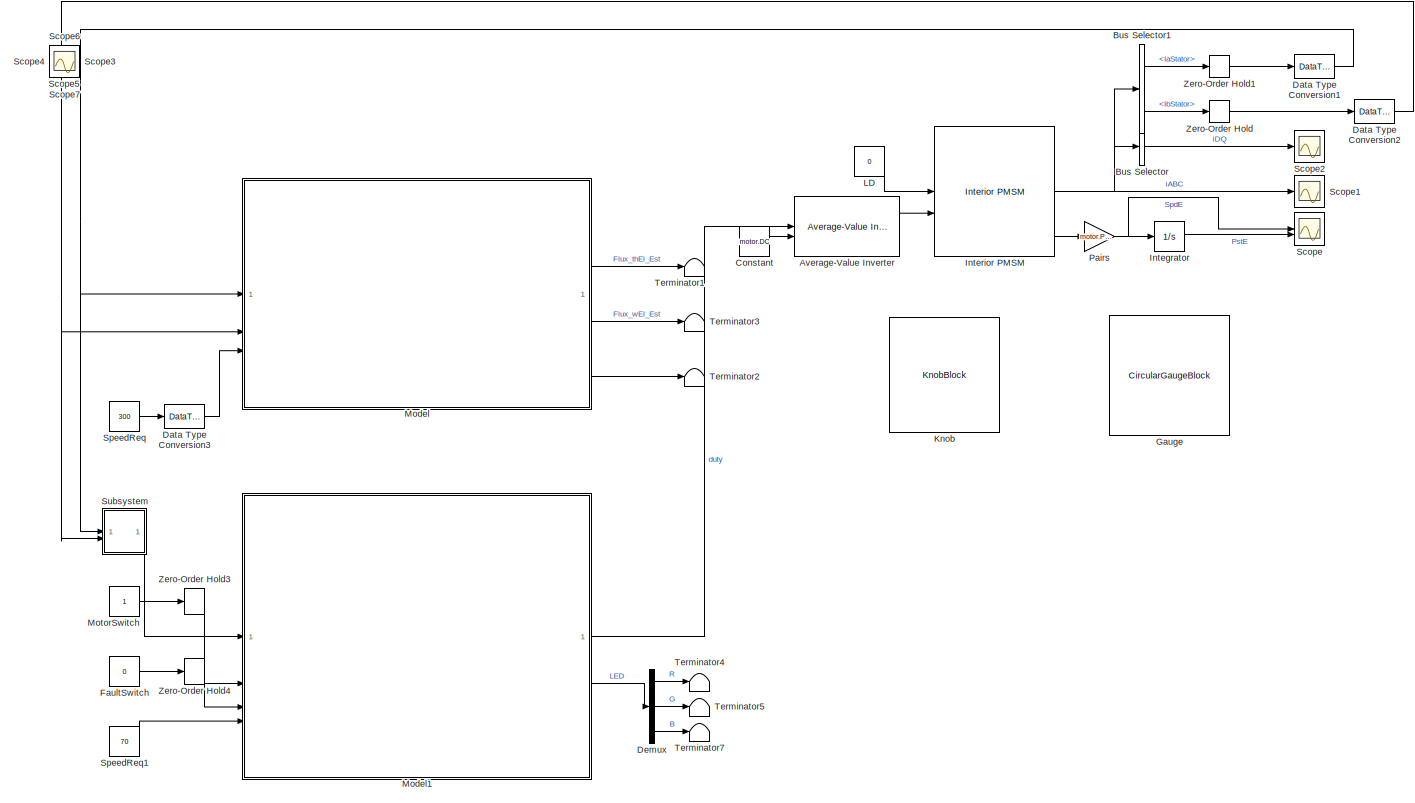
[diagram: root canvas - part 1/1, most of the canvas]
MODEL slx_91e2599d70df
KIND model
CONFIG AbsTol = auto
CONFIG EnableMultiTasking = off
CONFIG FixedStep = Ts_PIL
CONFIG MaxStep = auto
CONFIG MinStep = auto
CONFIG RelTol = 1e-3
CONFIG SampleTimeConstraint = Unconstrained
CONFIG SolverName = FixedStepAuto
CONFIG StartTime = 0.0
CONFIG StopTime = 2.5
BLOCK [Reference] Average-Value Inverter  REF=mcbplantlib/Average-Value Inverter
  SourceBlock = mcbplantlib/Average-Value Inverter
  SourceType = Average Value Inverter
BLOCK [BusSelector] Bus Selector
  OutputAsBus = on
  OutputSignals = IdSync,IqSync
BLOCK [BusSelector] Bus Selector1
  OutputSignals = IaStator,IbStator
BLOCK [Constant] Constant
  Value = motor.DC
BLOCK [DataTypeConversion] Data Type Conversion1
  OutDataTypeStr = single
  RndMeth = Floor
  SaturateOnIntegerOverflow = off
BLOCK [DataTypeConversion] Data Type Conversion2
  OutDataTypeStr = single
  RndMeth = Floor
  SaturateOnIntegerOverflow = off
BLOCK [DataTypeConversion] Data Type Conversion3
  OutDataTypeStr = single
  RndMeth = Floor
  SaturateOnIntegerOverflow = off
BLOCK [Demux] Demux
  Outputs = 3
BLOCK [Constant] FaultSwitch
  OutDataTypeStr = boolean
  Value = 0
BLOCK [CircularGaugeBlock] Gauge
  ScaleMax = 6.28
  TickInterval = 1
BLOCK [Integrator] Integrator
  WrapState = on
  WrappedStateLowerValue = 0
  WrappedStateUpperValue = 2*pi
BLOCK [Reference] Interior PMSM  REF=autolibpmsminterior/Interior PMSM
  SourceBlock = autolibpmsminterior/Interior PMSM
  SourceType = Interior PMSM
BLOCK [KnobBlock] Knob
  ScaleMax = 400
  ScaleMin = 100
BLOCK [Constant] LD
  Value = 0
BLOCK [ModelReference] Model
  Commented = on
  ModelNameDialog = FOC_PIL_Algth_model.slx
  ModelReferenceVersion = 5.2
BLOCK [ModelReference] Model1
  ModelNameDialog = FOC_PIL_StateMch_model.slx
  ModelReferenceVersion = 5.25
BLOCK [Constant] MotorSwitch
  OutDataTypeStr = boolean
BLOCK [Gain] Pairs
  Gain = motor.Prs
BLOCK [Scope] Scope
  Floating = off
  NumInputPorts = 2
  ScopeSpecificationString = Simulink.scopes.TimeScopeBlockCfg('CurrentConfiguration', extmgr.ConfigurationSet(extmgr.Configuration('Core','General UI',true),extmgr.Configuration('Core','Source UI',true),extmgr.Configuration('Sources','WiredSimulink',true,'DataLoggingVariableName','ScopeData1'),extmgr.Configuration('Visuals','Time Domain',true,'SerializedDisplays',{struct('MinYLimReal','-43.42744','MaxYLimReal','386.5258','YL...<+2103ch>
BLOCK [Scope] Scope1
  Floating = off
  NumInputPorts = 1
  ScopeSpecificationString = Simulink.scopes.TimeScopeBlockCfg('CurrentConfiguration', extmgr.ConfigurationSet(extmgr.Configuration('Core','General UI',true),extmgr.Configuration('Core','Source UI',true),extmgr.Configuration('Sources','WiredSimulink',true,'DataLoggingVariableName','ScopeData2'),extmgr.Configuration('Visuals','Time Domain',true,'SerializedDisplays',{struct('MinYLimReal','-14.41959','MaxYLimReal','15.34861','YL...<+1819ch>
BLOCK [Scope] Scope2
  Floating = off
  NumInputPorts = 1
  ScopeSpecificationString = Simulink.scopes.TimeScopeBlockCfg('CurrentConfiguration', extmgr.ConfigurationSet(extmgr.Configuration('Core','General UI',true),extmgr.Configuration('Core','Source UI',true),extmgr.Configuration('Sources','WiredSimulink',true),extmgr.Configuration('Visuals','Time Domain',true,'SerializedDisplays',{struct('MinYLimReal','-6.96767','MaxYLimReal','12.26545','YLabelReal','','MinYLimMag','0.00000','Max...<+1406ch>
BLOCK [Scope] Scope3
  Floating = off
  IOType = viewer
  NumInputPorts = 1
  ScopeSpecificationString = Simulink.scopes.TimeScopeBlockCfg('CurrentConfiguration', extmgr.ConfigurationSet(extmgr.Configuration('Core','General UI',true),extmgr.Configuration('Core','Source UI',true),extmgr.Configuration('Sources','WiredSimulink',true,'DataLoggingVariableName','ScopeData1'),extmgr.Configuration('Visuals','Time Domain',true,'SerializedDisplays',{struct('MinYLimReal','-0.7854','MaxYLimReal','7.06858','YLabe...<+1471ch>
BLOCK [Scope] Scope4
  Floating = off
  IOType = viewer
  NumInputPorts = 1
  ScopeSpecificationString = Simulink.scopes.TimeScopeBlockCfg('CurrentConfiguration', extmgr.ConfigurationSet(extmgr.Configuration('Core','General UI',true),extmgr.Configuration('Core','Source UI',true),extmgr.Configuration('Sources','WiredSimulink',true,'DataLoggingVariableName','ScopeData2'),extmgr.Configuration('Visuals','Time Domain',true,'SerializedDisplays',{struct('MinYLimReal','-45.93198','MaxYLimReal','383.42487','Y...<+1427ch>
BLOCK [Scope] Scope5
  Floating = off
  IOType = viewer
  NumInputPorts = 1
  ScopeSpecificationString = Simulink.scopes.TimeScopeBlockCfg('CurrentConfiguration', extmgr.ConfigurationSet(extmgr.Configuration('Core','General UI',true),extmgr.Configuration('Core','Source UI',true),extmgr.Configuration('Sources','WiredSimulink',true,'DataLoggingVariableName','ScopeData3'),extmgr.Configuration('Visuals','Time Domain',true,'SerializedDisplays',{struct('MinYLimReal','-12.93382','MaxYLimReal','12.99983','YL...<+1529ch>
BLOCK [Scope] Scope6
  Floating = off
  IOType = viewer
  NumInputPorts = 1
  ScopeSpecificationString = Simulink.scopes.TimeScopeBlockCfg('CurrentConfiguration', extmgr.ConfigurationSet(extmgr.Configuration('Core','General UI',true),extmgr.Configuration('Core','Source UI',true),extmgr.Configuration('Sources','WiredSimulink',true,'DataLoggingVariableName','ScopeData4'),extmgr.Configuration('Visuals','Time Domain',true,'SerializedDisplays',{struct('MinYLimReal','530.00000','MaxYLimReal','840.00000','Y...<+1451ch>
BLOCK [Scope] Scope7
  Floating = off
  IOType = viewer
  NumInputPorts = 1
  ScopeSpecificationString = Simulink.scopes.TimeScopeBlockCfg('CurrentConfiguration', extmgr.ConfigurationSet(extmgr.Configuration('Core','General UI',true),extmgr.Configuration('Core','Source UI',true),extmgr.Configuration('Sources','WiredSimulink',true,'DataLoggingVariableName','ScopeData1'),extmgr.Configuration('Visuals','Time Domain',true,'SerializedDisplays',{struct('MinYLimReal','-0.21148','MaxYLimReal','1.21148','YLab...<+1472ch>
BLOCK [Constant] SpeedReq
  Value = 300
BLOCK [Constant] SpeedReq1
  OutDataTypeStr = int16
  Value = 70
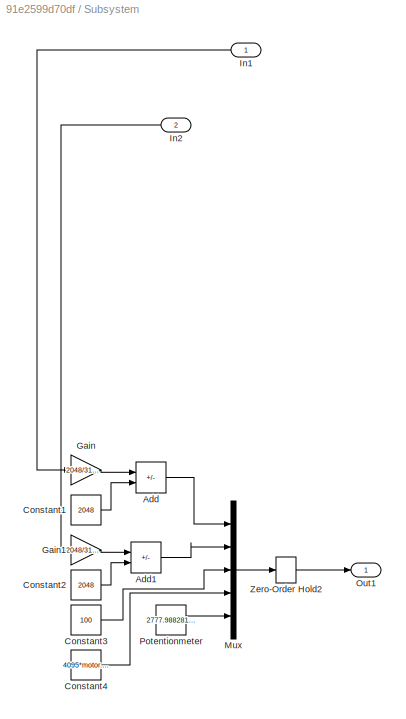
BLOCK [SubSystem] Subsystem
BLOCK [Sum] Subsystem/Add
  AccumDataTypeStr = uint16
  IconShape = rectangular
  Inputs = -+
BLOCK [Sum] Subsystem/Add1
  AccumDataTypeStr = uint16
  IconShape = rectangular
  Inputs = -+
BLOCK [Constant] Subsystem/Constant1
  OutDataTypeStr = uint16
  Value = 2048
BLOCK [Constant] Subsystem/Constant2
  OutDataTypeStr = uint16
  Value = 2048
BLOCK [Constant] Subsystem/Constant3
  OutDataTypeStr = uint16
  Value = 100
BLOCK [Constant] Subsystem/Constant4
  OutDataTypeStr = uint16
  Value = 4095*motor.DC/45
BLOCK [Gain] Subsystem/Gain
  Gain = 2048/31.25
  OutDataTypeStr = uint16
BLOCK [Gain] Subsystem/Gain1
  Gain = 2048/31.25
  OutDataTypeStr = uint16
BLOCK [Inport] Subsystem/In1
BLOCK [Inport] Subsystem/In2
  Port = 2
BLOCK [Mux] Subsystem/Mux
  DisplayOption = bar
  Inputs = 5
BLOCK [Outport] Subsystem/Out1
BLOCK [Constant] Subsystem/Potentionmeter
  OutDataTypeStr = uint16
  Value = 2777.98828125
BLOCK [ZeroOrderHold] Subsystem/Zero-Order Hold2
  SampleTime = Tctr
BLOCK [Terminator] Terminator1
BLOCK [Terminator] Terminator2
BLOCK [Terminator] Terminator3
BLOCK [Terminator] Terminator4
BLOCK [Terminator] Terminator5
BLOCK [Terminator] Terminator7
BLOCK [ZeroOrderHold] Zero-Order Hold
  SampleTime = Tctr
BLOCK [ZeroOrderHold] Zero-Order Hold1
  SampleTime = Tctr
BLOCK [ZeroOrderHold] Zero-Order Hold3
  SampleTime = Tctr
BLOCK [ZeroOrderHold] Zero-Order Hold4
  SampleTime = Tctr
LINE Average-Value Inverter:1 -> Interior PMSM:2
LINE Bus Selector1:1 -> Zero-Order Hold1:1
LINE Bus Selector1:2 -> Zero-Order Hold:1
LINE Bus Selector:1 -> Scope2:1
LINE Constant:1 -> Average-Value Inverter:2
NET Data Type Conversion1:1 -> Model:1, Subsystem:1
NET Data Type Conversion2:1 -> Model:2, Subsystem:2
LINE Data Type Conversion3:1 -> Model:3
LINE Demux:1 -> Terminator4:1
LINE Demux:2 -> Terminator5:1
LINE Demux:3 -> Terminator7:1
LINE FaultSwitch:1 -> Zero-Order Hold4:1
LINE Integrator:1 -> Scope:2
NET Interior PMSM:1 -> Bus Selector1:1, Bus Selector:1
LINE Interior PMSM:2 -> Scope1:1
LINE Interior PMSM:3 -> Pairs:1
LINE LD:1 -> Interior PMSM:1
LINE Model1:1 -> Average-Value Inverter:1
LINE Model1:2 -> Demux:1
LINE Model:2 -> Terminator1:1
LINE Model:3 -> Terminator3:1
LINE Model:4 -> Terminator2:1
LINE MotorSwitch:1 -> Zero-Order Hold3:1
NET Pairs:1 -> Integrator:1, Scope:1
LINE SpeedReq1:1 -> Model1:4
LINE SpeedReq:1 -> Data Type Conversion3:1
LINE Subsystem/Add1:1 -> Subsystem/Mux:2
LINE Subsystem/Add:1 -> Subsystem/Mux:1
LINE Subsystem/Constant1:1 -> Subsystem/Add:2
LINE Subsystem/Constant2:1 -> Subsystem/Add1:2
LINE Subsystem/Constant3:1 -> Subsystem/Mux:3
LINE Subsystem/Constant4:1 -> Subsystem/Mux:4
LINE Subsystem/Gain1:1 -> Subsystem/Add1:1
LINE Subsystem/Gain:1 -> Subsystem/Add:1
LINE Subsystem/In1:1 -> Subsystem/Gain:1
LINE Subsystem/In2:1 -> Subsystem/Gain1:1
LINE Subsystem/Mux:1 -> Subsystem/Zero-Order Hold2:1
LINE Subsystem/Potentionmeter:1 -> Subsystem/Mux:5
LINE Subsystem/Zero-Order Hold2:1 -> Subsystem/Out1:1
LINE Subsystem:1 -> Model1:1
LINE Zero-Order Hold1:1 -> Data Type Conversion1:1
LINE Zero-Order Hold3:1 -> Model1:2
LINE Zero-Order Hold4:1 -> Model1:3
LINE Zero-Order Hold:1 -> Data Type Conversion2:1
note: NET lines group one-source signal fan-out (src -> all destinations, sorted); 1:1 wires keep LINE
